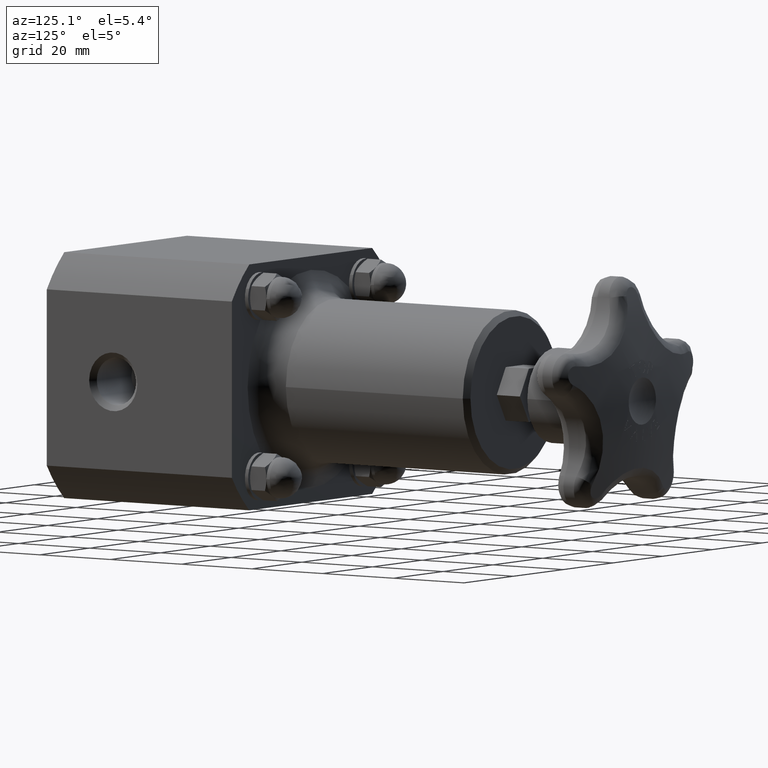
[diagram: clean part render]
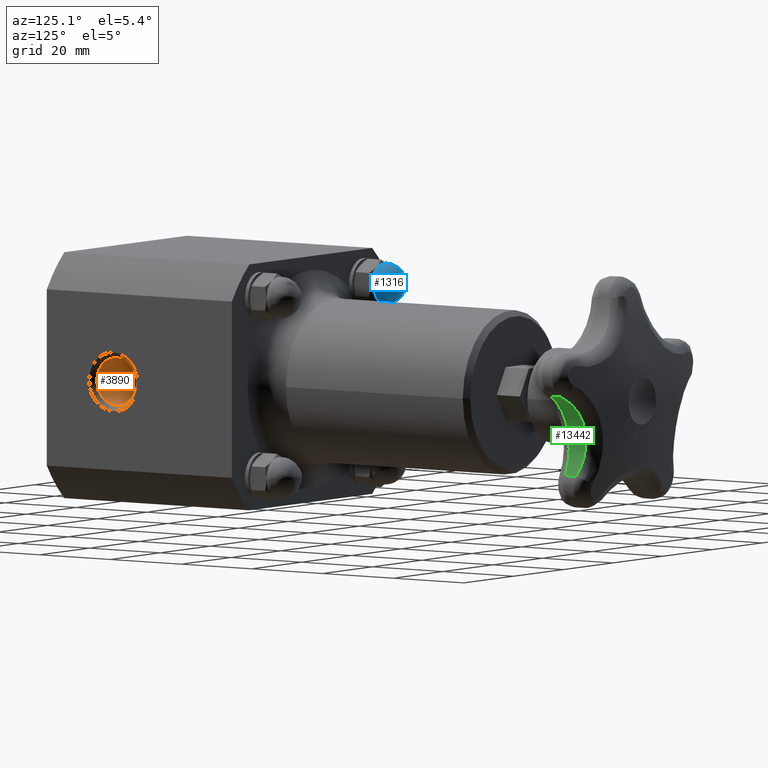
[diagram: same view with three faces highlighted in distinct colors, each labeled with its STEP entity id]
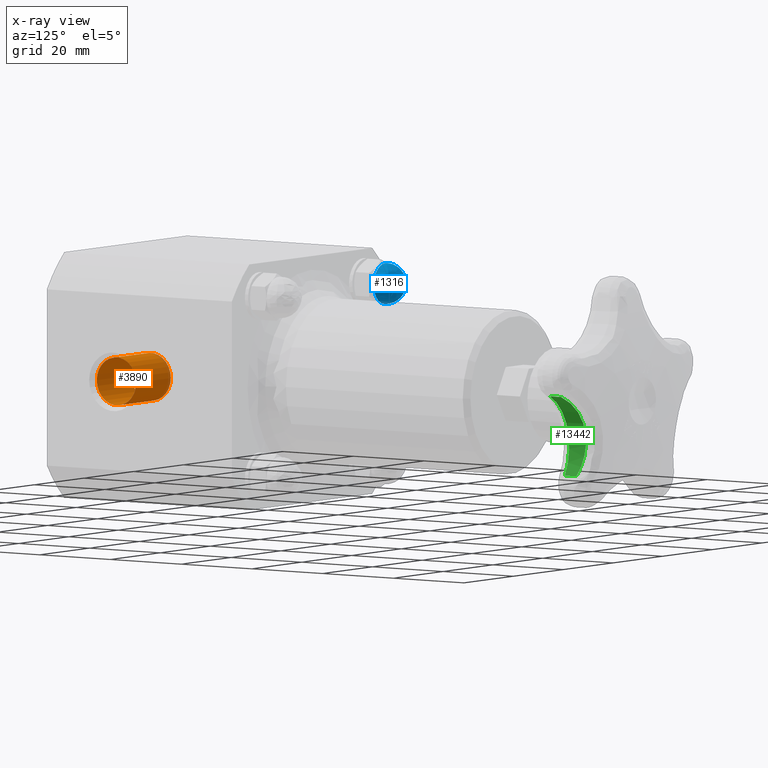
[diagram: x-ray of the same camera — body ghosted, the three highlighted faces saturated]
A machine part, auxiliary view with three faces highlighted in distinct colors.
The next image is the same camera in x-ray (body ghosted, the three faces saturated) — at least one of them is partly hidden behind the body in this view.
Their STEP definitions:

[orange] entity #3890 — the highlighted cylindrical surface (bore or boss wall) has radius 5.5499 mm, axis along (1, -0, 0).
#127=CARTESIAN_POINT('',(0.650000000000000,0.958500000000000,0.0));
#128=VERTEX_POINT('',#127);
#129=CARTESIAN_POINT('',(0.650000000000000,0.740000000000000,0.0));
#130=DIRECTION('',(1.0,0.0,0.0));
#131=DIRECTION('',(0.0,1.0,0.0));
#132=AXIS2_PLACEMENT_3D('',#129,#130,#131);
#133=CIRCLE('',#132,0.218500000000000);
#134=EDGE_CURVE('',#128,#128,#133,.T.);
#3856=CARTESIAN_POINT('',(1.200000000000000,0.958500000000000,-2.675853E-017));
#3857=VERTEX_POINT('',#3856);
#3858=CARTESIAN_POINT('',(1.200000000000000,0.740000000000000,0.0));
#3859=DIRECTION('',(-1.0,0.0,0.0));
#3860=DIRECTION('',(0.0,-1.0,0.0));
#3861=AXIS2_PLACEMENT_3D('',#3858,#3859,#3860);
#3862=CIRCLE('',#3861,0.218500000000000);
#3863=EDGE_CURVE('',#3857,#3857,#3862,.T.);
#3879=CARTESIAN_POINT('',(0.950000000000000,0.740000000000000,0.0));
#3880=DIRECTION('',(1.0,-2.091367E-016,0.0));
#3881=DIRECTION('',(0.0,1.0,0.0));
#3882=AXIS2_PLACEMENT_3D('',#3879,#3880,#3881);
#3883=CYLINDRICAL_SURFACE('',#3882,0.218500000000000);
#3884=ORIENTED_EDGE('',*,*,#134,.F.);
#3885=EDGE_LOOP('',(#3884));
#3886=FACE_OUTER_BOUND('',#3885,.T.);
#3887=ORIENTED_EDGE('',*,*,#3863,.F.);
#3888=EDGE_LOOP('',(#3887));
#3889=FACE_BOUND('',#3888,.T.);
#3890=ADVANCED_FACE('',(#3886,#3889),#3883,.F.);

[blue] entity #1316 — the highlighted face is a freeform B-spline surface patch.
#1234=CARTESIAN_POINT('',(-0.825000000000000,2.313812500000000,0.637500000000000));
#1235=CARTESIAN_POINT('',(-1.012500000000001,2.313812500000000,0.637500000000000));
#1236=CARTESIAN_POINT('',(-1.012500000000001,2.313812500000000,0.825000000000001));
#1237=CARTESIAN_POINT('',(-1.012500000000001,2.313812500000000,1.012500000000001));
#1238=CARTESIAN_POINT('',(-0.825000000000000,2.313812500000000,1.012500000000001));
#1239=CARTESIAN_POINT('',(-0.825000000000000,2.313812500000000,0.637500000000000));
#1240=CARTESIAN_POINT('',(-1.012500000000001,2.126312499999999,0.637500000000000));
#1241=CARTESIAN_POINT('',(-1.012500000000001,2.126312499999999,0.825000000000000));
#1242=CARTESIAN_POINT('',(-1.012500000000001,2.126312499999999,1.012500000000001));
#1243=CARTESIAN_POINT('',(-0.825000000000000,2.313812500000000,1.012500000000001));
#1244=CARTESIAN_POINT('',(-0.825000000000000,2.313812500000000,0.637500000000000));
#1245=CARTESIAN_POINT('',(-0.825000000000000,2.126312499999999,0.637500000000000));
#1246=CARTESIAN_POINT('',(-0.825000000000000,2.126312499999999,0.825000000000000));
#1247=CARTESIAN_POINT('',(-0.825000000000000,2.126312499999999,1.012500000000001));
#1248=CARTESIAN_POINT('',(-0.825000000000000,2.313812500000000,1.012500000000001));
#1249=CARTESIAN_POINT('',(-0.825000000000000,2.313812500000000,0.637500000000000));
#1250=CARTESIAN_POINT('',(-0.637500000000000,2.126312499999999,0.637500000000000));
#1251=CARTESIAN_POINT('',(-0.637500000000000,2.126312499999999,0.825000000000000));
#1252=CARTESIAN_POINT('',(-0.637500000000000,2.126312499999999,1.012500000000001));
#1253=CARTESIAN_POINT('',(-0.825000000000000,2.313812500000000,1.012500000000001));
#1254=CARTESIAN_POINT('',(-0.825000000000000,2.313812500000000,0.637500000000000));
#1255=CARTESIAN_POINT('',(-0.637500000000000,2.313812500000000,0.637500000000000));
#1256=CARTESIAN_POINT('',(-0.637500000000000,2.313812500000000,0.825000000000001));
#1257=CARTESIAN_POINT('',(-0.637500000000000,2.313812500000000,1.012500000000001));
#1258=CARTESIAN_POINT('',(-0.825000000000000,2.313812500000000,1.012500000000001));
#1259=CARTESIAN_POINT('',(-0.825000000000000,2.313812500000000,0.637500000000000));
#1260=CARTESIAN_POINT('',(-0.637500000000000,2.501312500000000,0.637500000000000));
#1261=CARTESIAN_POINT('',(-0.637500000000000,2.501312500000000,0.825000000000001));
#1262=CARTESIAN_POINT('',(-0.637500000000000,2.501312500000000,1.012500000000001));
#1263=CARTESIAN_POINT('',(-0.825000000000000,2.313812500000000,1.012500000000001));
#1264=CARTESIAN_POINT('',(-0.825000000000000,2.313812500000000,0.637500000000000));
#1265=CARTESIAN_POINT('',(-0.825000000000000,2.501312500000000,0.637500000000000));
#1266=CARTESIAN_POINT('',(-0.825000000000000,2.501312500000000,0.825000000000001));
#1267=CARTESIAN_POINT('',(-0.825000000000000,2.501312500000000,1.012500000000001));
#1268=CARTESIAN_POINT('',(-0.825000000000000,2.313812500000000,1.012500000000001));
#1269=CARTESIAN_POINT('',(-0.825000000000000,2.313812500000000,0.637500000000000));
#1270=CARTESIAN_POINT('',(-1.012500000000001,2.501312500000000,0.637500000000000));
#1271=CARTESIAN_POINT('',(-1.012500000000001,2.501312500000000,0.825000000000001));
#1272=CARTESIAN_POINT('',(-1.012500000000001,2.501312500000000,1.012500000000001));
#1273=CARTESIAN_POINT('',(-0.825000000000000,2.313812500000000,1.012500000000001));
#1274=CARTESIAN_POINT('',(-0.825000000000000,2.313812500000000,0.637500000000000));
#1275=CARTESIAN_POINT('',(-1.012500000000001,2.313812500000000,0.637500000000000));
#1276=CARTESIAN_POINT('',(-1.012500000000001,2.313812500000000,0.825000000000001));
#1277=CARTESIAN_POINT('',(-1.012500000000001,2.313812500000000,1.012500000000001));
#1278=CARTESIAN_POINT('',(-0.825000000000000,2.313812500000000,1.012500000000001));
#1286=(BOUNDED_SURFACE()B_SPLINE_SURFACE(2,2,((#1234,#1239,#1244,#1249,#1254,#1259,#1264,#1269,#1274),(#1235,#1240,#1245,#1250,#1255,#1260,#1265,#1270,#1275),(#1236,#1241,#1246,#1251,#1256,#1261,#1266,#1271,#1276),(#1237,#1242,#1247,#1252,#1257,#1262,#1267,#1272,#1277),(#1238,#1243,#1248,#1253,#1258,#1263,#1268,#1273,#1278)),.UNSPECIFIED.,.F.,.T.,.U.)B_SPLINE_SURFACE_WITH_KNOTS((3,2,3),(3,2,2,2,3),(-1.570796326794897,0.0,1.570796326794897),(0.0,1.570796326794897,3.141592653589793,4.712388980384690,6.283185307179586),.UNSPECIFIED.)GEOMETRIC_REPRESENTATION_ITEM()RATIONAL_B_SPLINE_SURFACE(((1.0,0.707106781186548,1.0,0.707106781186548,1.0,0.707106781186548,1.0,0.707106781186548,1.0),(0.707106781186547,0.499999999999999,0.707106781186547,0.499999999999999,0.707106781186547,0.499999999999999,0.707106781186547,0.499999999999999,0.707106781186547),(1.0,0.707106781186548,1.0,0.707106781186548,1.0,0.707106781186548,1.0,0.707106781186548,1.0),(0.707106781186547,0.499999999999999,0.707106781186547,0.499999999999999,0.707106781186547,0.499999999999999,0.707106781186547,0.499999999999999,0.707106781186547),(1.0,0.707106781186548,1.0,0.707106781186548,1.0,0.707106781186548,1.0,0.707106781186548,1.0)))REPRESENTATION_ITEM('')SURFACE());
#1287=CARTESIAN_POINT('',(-0.637500000000000,2.313812500000001,0.825000000000001));
#1288=VERTEX_POINT('',#1287);
#1289=CARTESIAN_POINT('',(-0.825000000000000,2.313812500000001,1.012500000000001));
#1290=VERTEX_POINT('',#1289);
#1291=CARTESIAN_POINT('',(-0.825000000000001,2.313812500000001,0.825000000000001));
#1292=DIRECTION('',(0.0,-1.0,0.0));
#1293=DIRECTION('',(1.0,0.0,0.0));
#1294=AXIS2_PLACEMENT_3D('',#1291,#1292,#1293);
#1295=CIRCLE('',#1294,0.187500000000000);
#1296=EDGE_CURVE('',#1288,#1290,#1295,.T.);
#1297=ORIENTED_EDGE('',*,*,#1296,.F.);
#1298=CARTESIAN_POINT('',(-0.825000000000001,2.313812500000001,0.637500000000001));
#1299=VERTEX_POINT('',#1298);
#1300=CARTESIAN_POINT('',(-0.825000000000001,2.313812500000001,0.825000000000001));
#1301=DIRECTION('',(0.0,-1.0,0.0));
#1302=DIRECTION('',(1.0,0.0,0.0));
#1303=AXIS2_PLACEMENT_3D('',#1300,#1301,#1302);
#1304=CIRCLE('',#1303,0.187500000000000);
#1305=EDGE_CURVE('',#1299,#1288,#1304,.T.);
#1306=ORIENTED_EDGE('',*,*,#1305,.F.);
#1307=CARTESIAN_POINT('',(-0.825000000000001,2.313812500000001,0.825000000000001));
#1308=DIRECTION('',(0.0,-1.0,0.0));
#1309=DIRECTION('',(1.0,0.0,0.0));
#1310=AXIS2_PLACEMENT_3D('',#1307,#1308,#1309);
#1311=CIRCLE('',#1310,0.187500000000000);
#1312=EDGE_CURVE('',#1290,#1299,#1311,.T.);
#1313=ORIENTED_EDGE('',*,*,#1312,.F.);
#1314=EDGE_LOOP('',(#1297,#1306,#1313));
#1315=FACE_OUTER_BOUND('',#1314,.T.);
#1316=ADVANCED_FACE('',(#1315),#1286,.F.);

[green] entity #13442 — the highlighted cylindrical surface (partial cylindrical patch) has radius 13.6194 mm, axis along (0, -1, 0).
#11926=CARTESIAN_POINT('',(0.962091007137067,5.397500000000000,0.098728186917762));
#11927=VERTEX_POINT('',#11926);
#11952=CARTESIAN_POINT('',(0.720317002653361,5.397500000000000,-0.645375686398676));
#11953=VERTEX_POINT('',#11952);
#11961=CARTESIAN_POINT('',(1.189959078666680,5.397500000000000,-0.386641142369966));
#11962=DIRECTION('',(5.945184E-034,1.0,-1.931707E-034));
#11963=DIRECTION('',(-0.951056516295154,6.251136E-034,0.309016994374947));
#11964=AXIS2_PLACEMENT_3D('',#11961,#11962,#11963);
#11965=CIRCLE('',#11964,0.536197019607386);
#11966=EDGE_CURVE('',#11953,#11927,#11965,.T.);
#12392=CARTESIAN_POINT('',(0.962091007137200,5.523308214565891,0.098728186917824));
#12393=VERTEX_POINT('',#12392);
#12401=CARTESIAN_POINT('',(0.720317002653418,5.523308214565909,-0.645375686398778));
#12402=VERTEX_POINT('',#12401);
#12403=CARTESIAN_POINT('',(0.962091007137333,5.523308214565891,0.098728186917886));
#12404=CARTESIAN_POINT('',(0.925165299594352,5.535409488739809,0.081392543192681));
#12405=CARTESIAN_POINT('',(0.854542588344285,5.557119554787053,0.037747306925938));
#12406=CARTESIAN_POINT('',(0.750719292497292,5.583948109360758,-0.065464916519507));
#12407=CARTESIAN_POINT('',(0.689560582037411,5.593099622277593,-0.179424578985066));
#12408=CARTESIAN_POINT('',(0.657588658468642,5.590169233861591,-0.301592040856828));
#12409=CARTESIAN_POINT('',(0.650871392701319,5.582189920477567,-0.386886952641073));
#12410=CARTESIAN_POINT('',(0.659071970844193,5.568765863469818,-0.469949762035215));
#12411=CARTESIAN_POINT('',(0.676770855760733,5.551840446843009,-0.551610674625683));
#12412=CARTESIAN_POINT('',(0.700633113442560,5.535409488739826,-0.609646469692531));
#12413=CARTESIAN_POINT('',(0.720317002653474,5.523308214565908,-0.645375686398881));
#12414=B_SPLINE_CURVE_WITH_KNOTS('',3,(#12403,#12404,#12405,#12406,#12407,#12408,#12409,#12410,#12411,#12412,#12413),.UNSPECIFIED.,.F.,.U.,(4,1,1,1,1,1,1,1,4),(-2.739949090500320,-2.348527791857418,-1.957106493214515,-1.369974545250160,-1.174263895928709,-0.782842597285806,-0.587131947964354,-0.391421298642903,0.0),.UNSPECIFIED.);
#12415=EDGE_CURVE('',#12393,#12402,#12414,.T.);
#13417=CARTESIAN_POINT('',(0.720317002653361,5.523308214565909,-0.645375686398676));
#13418=DIRECTION('',(0.0,-1.0,0.0));
#13419=VECTOR('',#13418,0.125808214565909);
#13420=LINE('',#13417,#13419);
#13421=EDGE_CURVE('',#12402,#11953,#13420,.T.);
#13426=CARTESIAN_POINT('',(1.189959078666680,5.757500000000000,-0.386641142369966));
#13427=DIRECTION('',(2.063892E-049,-1.0,2.022910E-033));
#13428=DIRECTION('',(0.875875953874565,9.761277E-034,0.482536333786711));
#13429=AXIS2_PLACEMENT_3D('',#13426,#13427,#13428);
#13430=CYLINDRICAL_SURFACE('',#13429,0.536197019607386);
#13431=ORIENTED_EDGE('',*,*,#11966,.F.);
#13432=ORIENTED_EDGE('',*,*,#13421,.F.);
#13433=ORIENTED_EDGE('',*,*,#12415,.F.);
#13434=CARTESIAN_POINT('',(0.962091007137067,5.523308214565891,0.098728186917762));
#13435=DIRECTION('',(0.0,-1.0,0.0));
#13436=VECTOR('',#13435,0.125808214565891);
#13437=LINE('',#13434,#13436);
#13438=EDGE_CURVE('',#12393,#11927,#13437,.T.);
#13439=ORIENTED_EDGE('',*,*,#13438,.T.);
#13440=EDGE_LOOP('',(#13431,#13432,#13433,#13439));
#13441=FACE_OUTER_BOUND('',#13440,.T.);
#13442=ADVANCED_FACE('',(#13441),#13430,.F.);